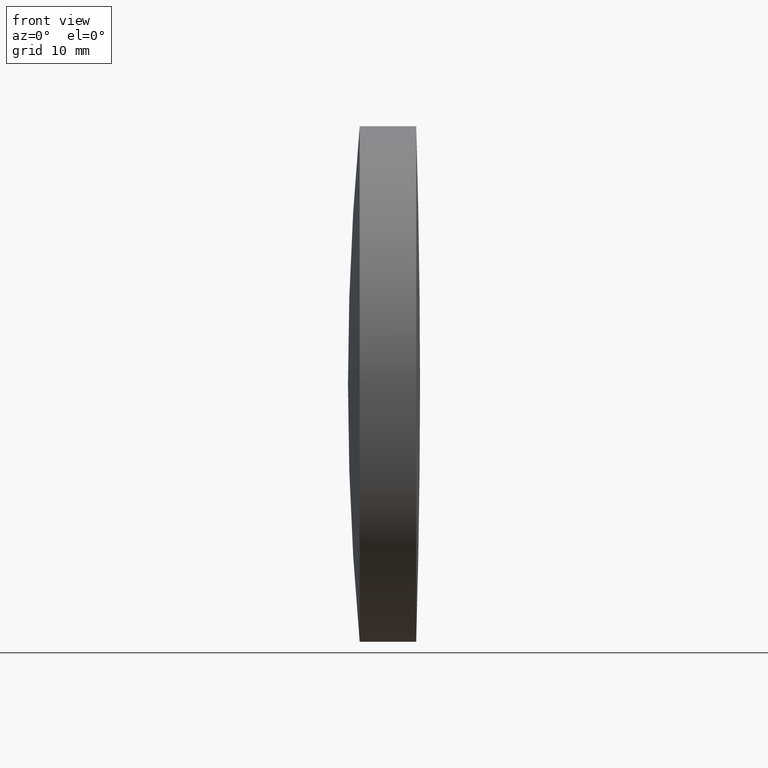
[diagram: clean part render]
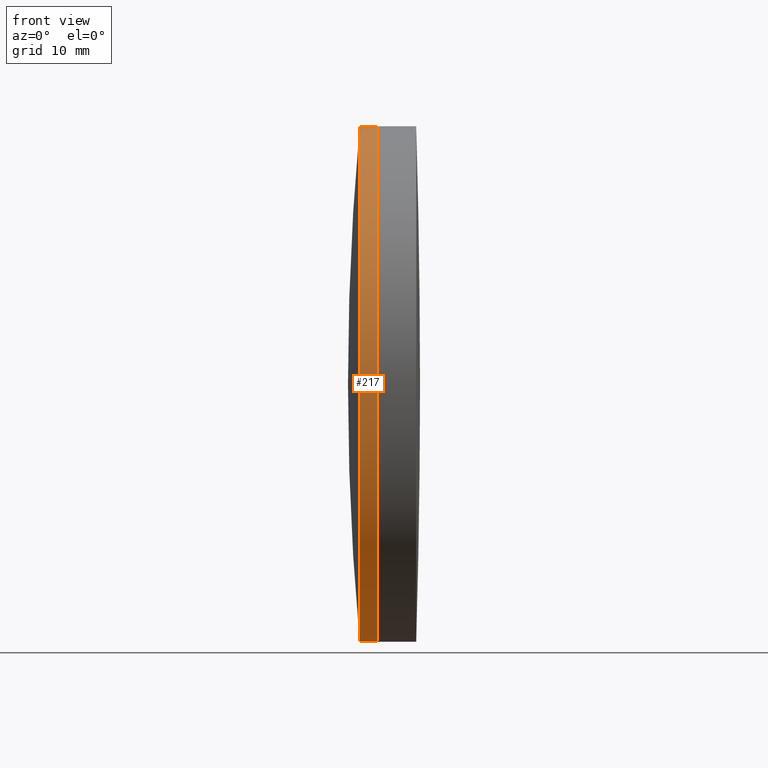
[diagram: same view with one face highlighted and labeled with its STEP entity id]
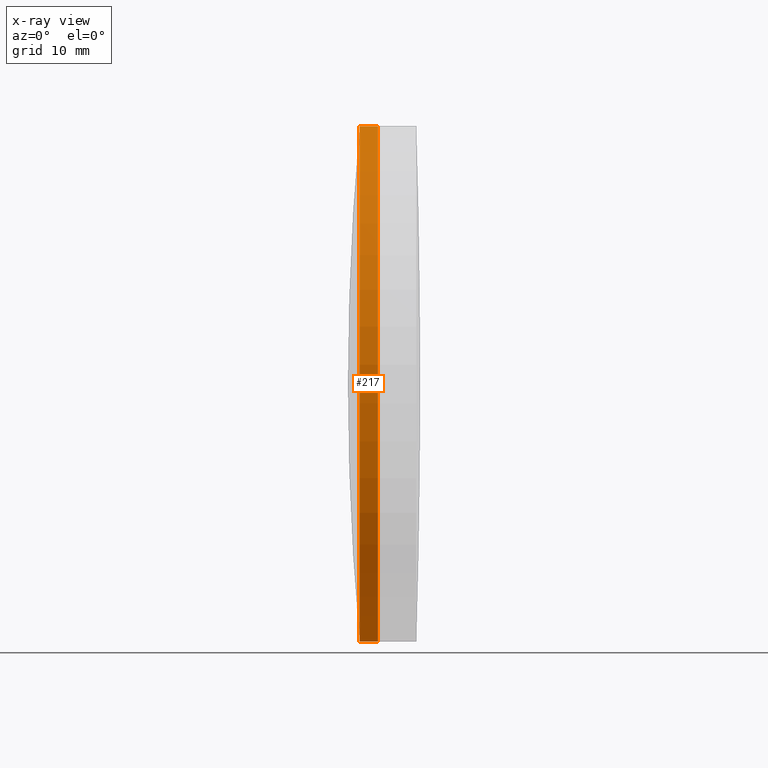
[diagram: x-ray of the same camera — body ghosted, the highlighted face saturated]
A machine part, front view. The second image highlights one B-rep face of the part: STEP entity #217.
The next image is the same camera in x-ray: the body ghosted, the highlighted face saturated — about 0% of this face is hidden behind the body in this view.
In plain terms, the highlighted cylindrical surface (partial cylindrical patch) has radius 25.4 mm, axis along (-1, -0, -0).
Its self-contained STEP definition (entity closure, byte-faithful):
#2 = ORIENTED_EDGE ( 'NONE', *, *, #10, .F. ) ;
#9 = DIRECTION ( 'NONE',  ( 0.0000000000000000000, 0.0000000000000000000, 1.000000000000000000 ) ) ;
#10 = EDGE_CURVE ( 'NONE', #95, #283, #260, .T. ) ;
#18 = EDGE_LOOP ( 'NONE', ( #113, #191, #338, #2 ) ) ;
#32 = DIRECTION ( 'NONE',  ( 0.0000000000000000000, 0.0000000000000000000, 1.000000000000000000 ) ) ;
#41 = CYLINDRICAL_SURFACE ( 'NONE', #343, 25.39999999999999500 ) ;
#48 = DIRECTION ( 'NONE',  ( -1.000000000000000000, -0.0000000000000000000, -0.0000000000000000000 ) ) ;
#49 = CARTESIAN_POINT ( 'NONE',  ( 664.2238686839525600, 0.0000000000000000000, 0.0000000000000000000 ) ) ;
#51 = AXIS2_PLACEMENT_3D ( 'NONE', #287, #135, #186 ) ;
#67 = EDGE_CURVE ( 'NONE', #131, #216, #119, .T. ) ;
#70 = AXIS2_PLACEMENT_3D ( 'NONE', #49, #48, #9 ) ;
#83 = LINE ( 'NONE', #161, #297 ) ;
#88 = DIRECTION ( 'NONE',  ( -1.000000000000000000, -0.0000000000000000000, -0.0000000000000000000 ) ) ;
#95 = VERTEX_POINT ( 'NONE', #123 ) ;
#99 = CARTESIAN_POINT ( 'NONE',  ( 124.5233095260452400, 3.110602869834276500E-015, -25.39999999999999500 ) ) ;
#113 = ORIENTED_EDGE ( 'NONE', *, *, #245, .F. ) ;
#119 = CIRCLE ( 'NONE', #70, 25.39999999999999500 ) ;
#123 = CARTESIAN_POINT ( 'NONE',  ( 662.4325319060842500, 3.110602869834266600E-015, -25.39999999999992000 ) ) ;
#124 = EDGE_CURVE ( 'NONE', #216, #283, #83, .T. ) ;
#131 = VERTEX_POINT ( 'NONE', #144 ) ;
#135 = DIRECTION ( 'NONE',  ( -1.000000000000000000, -0.0000000000000000000, -0.0000000000000000000 ) ) ;
#144 = CARTESIAN_POINT ( 'NONE',  ( 664.2238686839525600, 3.110602869834276500E-015, -25.39999999999999500 ) ) ;
#145 = DIRECTION ( 'NONE',  ( -1.000000000000000000, -0.0000000000000000000, -0.0000000000000000000 ) ) ;
#151 = CARTESIAN_POINT ( 'NONE',  ( 124.5233095260452400, 0.0000000000000000000, 0.0000000000000000000 ) ) ;
#152 = VECTOR ( 'NONE', #88, 1000.000000000000000 ) ;
#161 = CARTESIAN_POINT ( 'NONE',  ( 124.5233095260452400, 0.0000000000000000000, 25.39999999999999500 ) ) ;
#186 = DIRECTION ( 'NONE',  ( 0.0000000000000000000, 0.0000000000000000000, 1.000000000000000000 ) ) ;
#191 = ORIENTED_EDGE ( 'NONE', *, *, #67, .T. ) ;
#216 = VERTEX_POINT ( 'NONE', #258 ) ;
#217 = ADVANCED_FACE ( 'NONE', ( #312 ), #41, .T. ) ;
#225 = CARTESIAN_POINT ( 'NONE',  ( 662.4325319060842500, 0.0000000000000000000, 25.39999999999991700 ) ) ;
#245 = EDGE_CURVE ( 'NONE', #131, #95, #324, .T. ) ;
#258 = CARTESIAN_POINT ( 'NONE',  ( 664.2238686839525600, 0.0000000000000000000, 25.39999999999999500 ) ) ;
#260 = CIRCLE ( 'NONE', #51, 25.39999999999999500 ) ;
#283 = VERTEX_POINT ( 'NONE', #225 ) ;
#287 = CARTESIAN_POINT ( 'NONE',  ( 662.4325319060842500, 0.0000000000000000000, 0.0000000000000000000 ) ) ;
#297 = VECTOR ( 'NONE', #301, 1000.000000000000000 ) ;
#301 = DIRECTION ( 'NONE',  ( -1.000000000000000000, -0.0000000000000000000, -0.0000000000000000000 ) ) ;
#312 = FACE_OUTER_BOUND ( 'NONE', #18, .T. ) ;
#324 = LINE ( 'NONE', #99, #152 ) ;
#338 = ORIENTED_EDGE ( 'NONE', *, *, #124, .T. ) ;
#343 = AXIS2_PLACEMENT_3D ( 'NONE', #151, #145, #32 ) ;